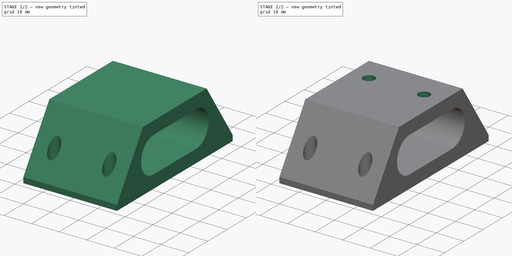
[diagram: build sequence overview — one tinted view per stage of 2, left to right]
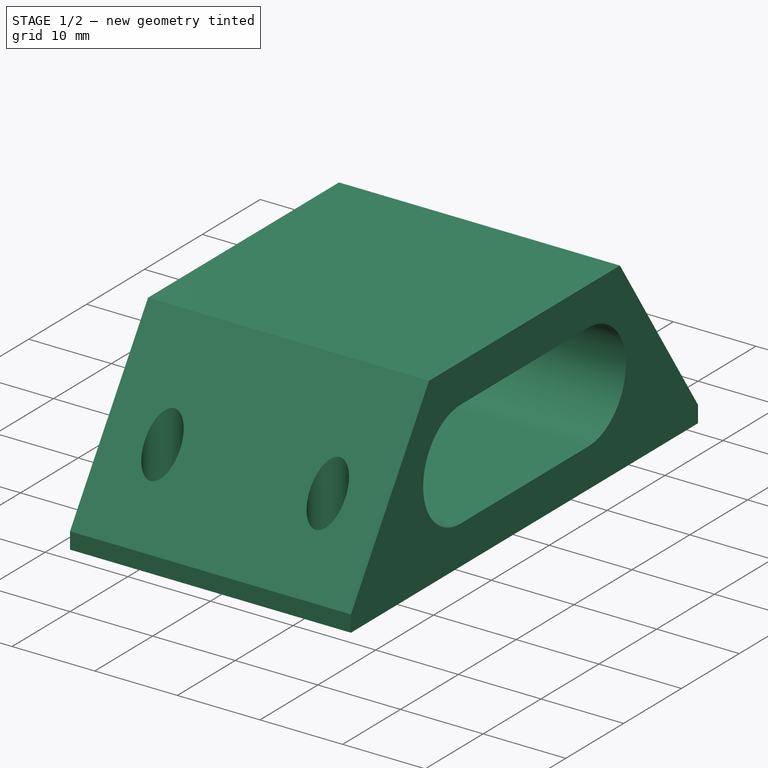
[diagram: stage 1 of 2 — iso view after this stage's code; geometry added in this stage tinted green]
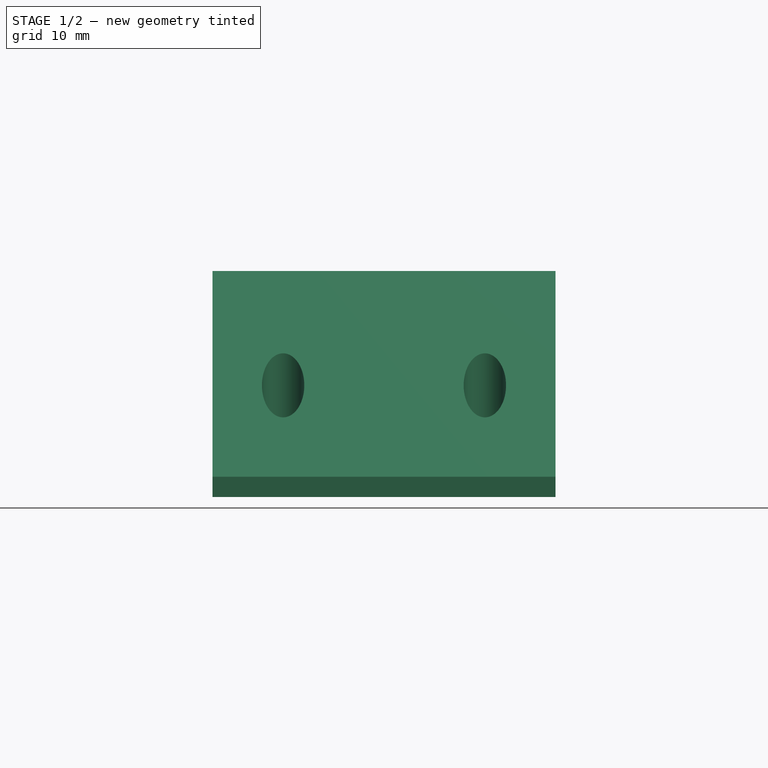
[diagram: stage 1 of 2 — front view after this stage's code; geometry added in this stage tinted green]
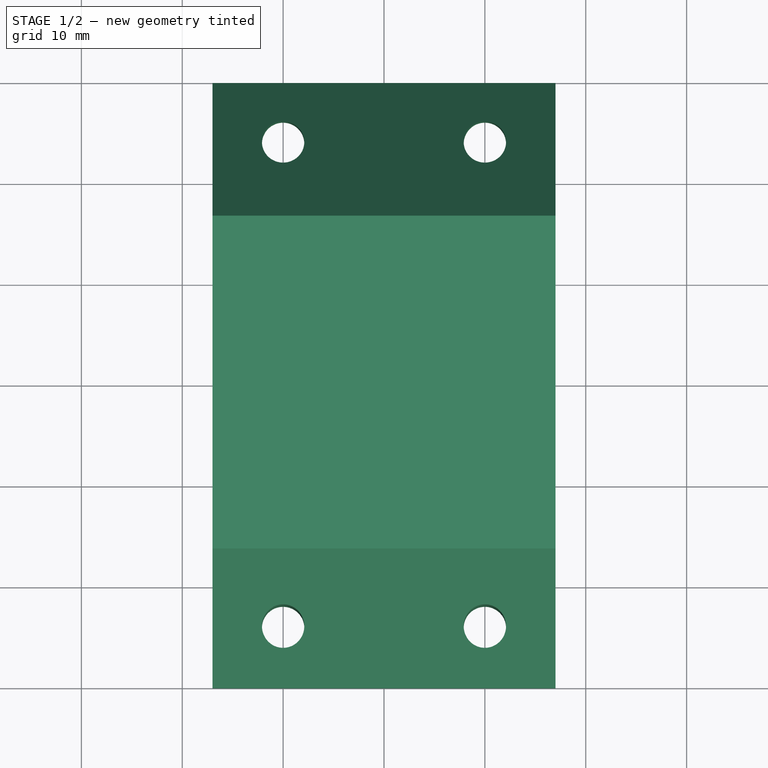
[diagram: stage 1 of 2 — top view after this stage's code; geometry added in this stage tinted green]
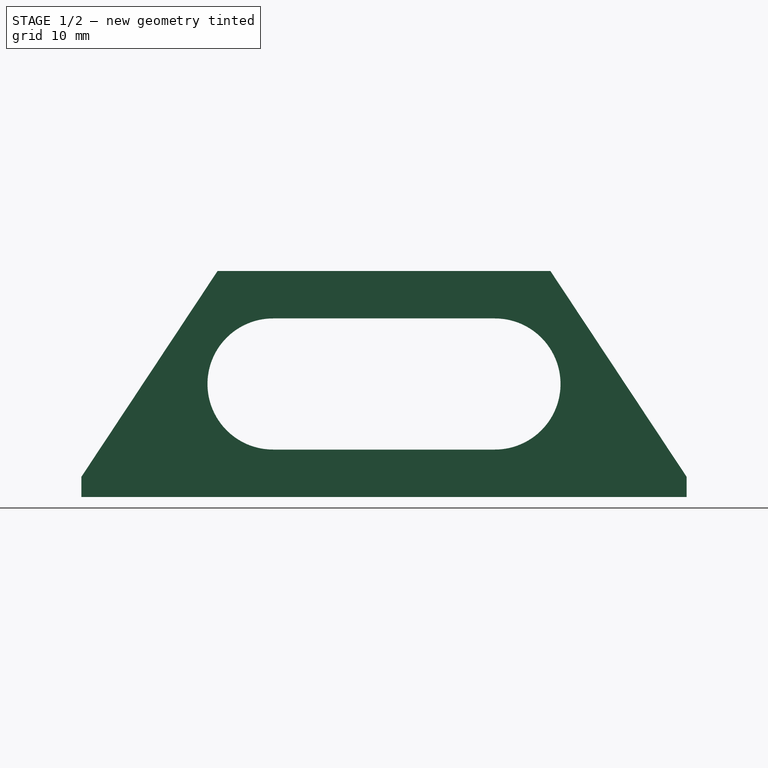
[diagram: stage 1 of 2 — right view after this stage's code; geometry added in this stage tinted green]
FCSTD DOCUMENT  (FreeCAD 0.19R23578 (Git))
Label: nut_block_standoff
License: All rights reserved
LicenseURL: http://en.wikipedia.org/wiki/All_rights_reserved
objects: Sketcher::SketchObject×3, PartDesign::Hole×2, PartDesign::CoordinateSystem×2, PartDesign::Pad×1, PartDesign::Body×1, App::Part×1
note: 12 computed .brp shape members not serialized (recipe doc carries the construction recipe); baked Part::Feature solids carry a one-line shape summary decoded from their .brp

FEATURE [Sketcher::SketchObject] Sketch026
  MapMode = 5
  Placement = pos=(0,0,0) rot=(0.57735,0.57735,0.57735;2.0944rad)
  Support = -> [YZ_Plane030]
  sketch-geometry (10):
    g0: LineSegment StartX=-30 StartY=0 StartZ=0 EndX=-30 EndY=2 EndZ=0
    g1: LineSegment StartX=-30 StartY=2 StartZ=0 EndX=-16.5 EndY=22.4 EndZ=0
    g2: LineSegment StartX=-16.5 StartY=22.4 StartZ=0 EndX=16.5 EndY=22.4 EndZ=0
    g3: LineSegment StartX=16.5 StartY=22.4 StartZ=0 EndX=30 EndY=2 EndZ=0
    g4: LineSegment StartX=30 StartY=2 StartZ=0 EndX=30 EndY=0 EndZ=0
    g5: LineSegment StartX=30 StartY=0 StartZ=0 EndX=-30 EndY=0 EndZ=0
    g6: ArcOfCircle CenterX=-11 CenterY=11.2 CenterZ=0 NormalX=0 NormalY=0 NormalZ=1 AngleXU=0 Radius=6.5 StartAngle=1.5708 EndAngle=4.71239
    g7: ArcOfCircle CenterX=11 CenterY=11.2 CenterZ=0 NormalX=0 NormalY=0 NormalZ=1 AngleXU=0 Radius=6.5 StartAngle=4.71239 EndAngle=7.85398
    g8: LineSegment StartX=-11 StartY=4.7 StartZ=0 EndX=11 EndY=4.7 EndZ=0
    g9: LineSegment StartX=-11 StartY=17.7 StartZ=0 EndX=11 EndY=17.7 EndZ=0
  constraints (25):
    c: Coincident(g0,g5)
    c: Coincident(g0,g1)
    c: Coincident(g1,g2)
    c: Coincident(g2,g3)
    c: Coincident(g3,g4)
    c: Coincident(g4,g5)
    c: Vertical(g0)
    c: Vertical(g4)
    c: PointOnObject(g-1,g5)
    c: DistanceX(g5,g5) = 60
    c: DistanceX(g2,g2) = 33
    c: DistanceY(g0,g0) = 2
    c: Equal(g0,g4)
    c: DistanceY(g4,g2) = 22.4
    c: Symmetric(g1,g2,g-2)
    c: Symmetric(g0,g4,g-2)
    c: Tangent(g6,g9) = 1.5708
    c: Tangent(g6,g8) = -1.5708
    c: Tangent(g8,g7) = -1.5708
    c: Tangent(g9,g7) = 1.5708
    c: Horizontal(g8)
    c: Symmetric(g6,g7,g-2)
    c: Distance(g6,g6) = 13
    c: DistanceY(g-1,g6) = 11.2
    c: DistanceX(g6,g7) = 22
FEATURE [PartDesign::Pad] Pad002
  AllowMultiFace = false
  Direction = (1,1,1)
  Length = 34
  Length2 = 100
  Midplane = true
  Placement = pos=(0,0,0) rot=(0.57735,0.57735,0.57735;2.0944rad)
  Profile = -> Sketch026
  Type = 0
FEATURE [Sketcher::SketchObject] Sketch027
  MapMode = 5
  Placement = pos=(0,0,0) rot=(0,1,0;3.14159rad)
  Support = -> [XY_Plane030]
  sketch-geometry (11):
    g0: Circle CenterX=-10 CenterY=24 CenterZ=0 NormalX=0 NormalY=0 NormalZ=1 AngleXU=0 Radius=2.5
    g1: Circle CenterX=-10 CenterY=-24 CenterZ=0 NormalX=0 NormalY=0 NormalZ=1 AngleXU=0 Radius=2.5
    g2: Circle CenterX=10 CenterY=-24 CenterZ=0 NormalX=0 NormalY=0 NormalZ=1 AngleXU=0 Radius=2.5
    g3: Circle CenterX=10 CenterY=24 CenterZ=0 NormalX=0 NormalY=0 NormalZ=1 AngleXU=0 Radius=2.5
    g4: LineSegment StartX=-10 StartY=24 StartZ=0 EndX=10 EndY=24 EndZ=0
    g5: LineSegment StartX=10 StartY=24 StartZ=0 EndX=10 EndY=-24 EndZ=0
    g6: LineSegment StartX=10 StartY=-24 StartZ=0 EndX=-10 EndY=-24 EndZ=0
    g7: LineSegment StartX=-10 StartY=-24 StartZ=0 EndX=-10 EndY=24 EndZ=0
    g8: LineSegment StartX=-10 StartY=24 StartZ=0 EndX=10 EndY=-24 EndZ=0
    g9: LineSegment StartX=-10 StartY=-24 StartZ=0 EndX=10 EndY=24 EndZ=0
    g10: GeomPoint X=0 Y=0 Z=0
  constraints (25):
    c: Coincident(g4,g5)
    c: Coincident(g5,g6)
    c: Coincident(g6,g7)
    c: Coincident(g7,g4)
    c: Horizontal(g4)
    c: Horizontal(g6)
    c: Vertical(g5)
    c: Vertical(g7)
    c: Coincident(g4,g0)
    c: Coincident(g5,g2)
    c: Coincident(g3,g4)
    c: Coincident(g1,g6)
    c: Diameter(g0) = 5
    c: Equal(g0,g3)
    c: Equal(g3,g1)
    c: Equal(g1,g2)
    c: Coincident(g8,g2)
    c: Coincident(g9,g1)
    c: Coincident(g9,g3)
    c: PointOnObject(g10,g8)
    c: PointOnObject(g10,g9)
    c: Coincident(g10,g-1)
    c: DistanceX(g6,g6) = 20
    c: Coincident(g8,g0)
    c: DistanceY(g5,g5) = 48
FEATURE [PartDesign::Hole] Hole002
  AllowMultiFace = false
  BaseFeature = -> Pad002
  Depth = 25
  DepthType = 1
  Diameter = 1.6
  DrillPoint = 0
  DrillPointAngle = 118
  HoleCutCountersinkAngle = 90
  HoleCutDepth = 0
  HoleCutDiameter = 5
  HoleCutType = 0
  ModelActualThread = false
  Placement = pos=(0,0,0) rot=(0.57735,0.57735,0.57735;2.0944rad)
  Profile = -> Sketch027
  Tapered = false
  TaperedAngle = 90
  ThreadAngle = 60
  ThreadClass = 0
  ThreadCutOffInner = 0.0433013
  ThreadCutOffOuter = 0.0866025
  ThreadDirection = 1
  ThreadFit = 0
  ThreadPitch = 0.4
  ThreadSize = 6
  ThreadType = 1
  Threaded = true
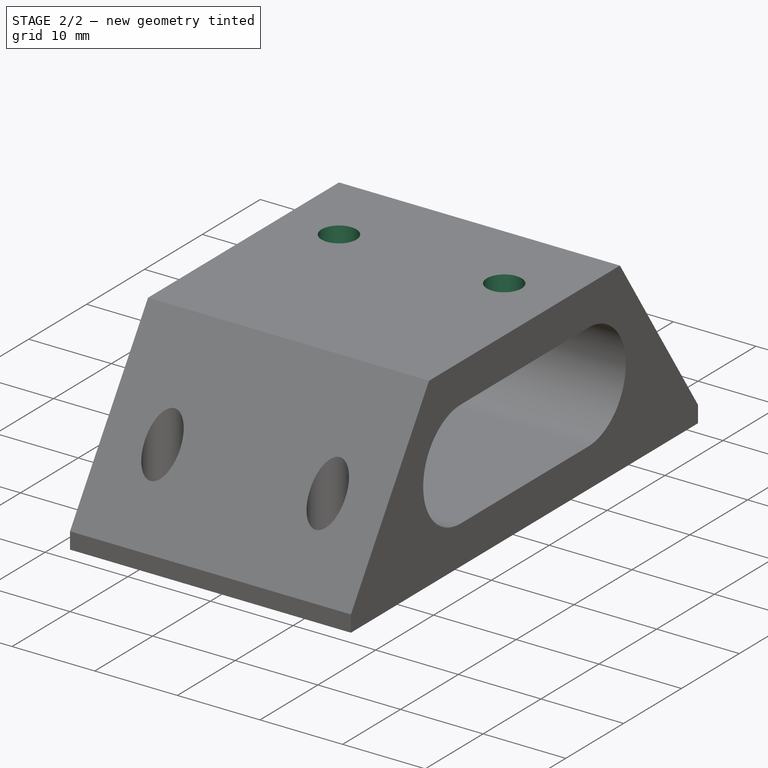
[diagram: stage 2 of 2 — iso view after this stage's code; geometry added in this stage tinted green]
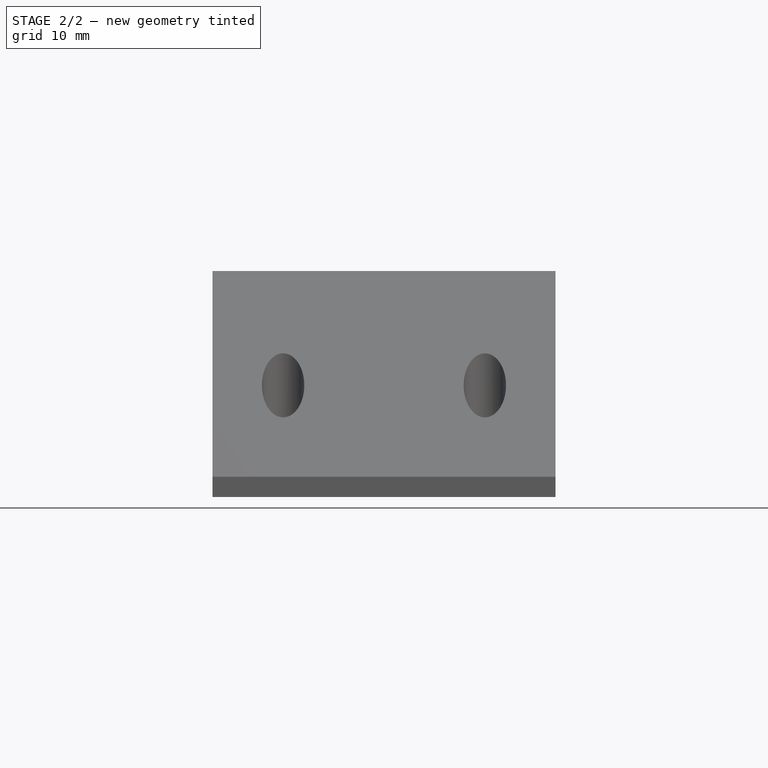
[diagram: stage 2 of 2 — front view after this stage's code; geometry added in this stage tinted green]
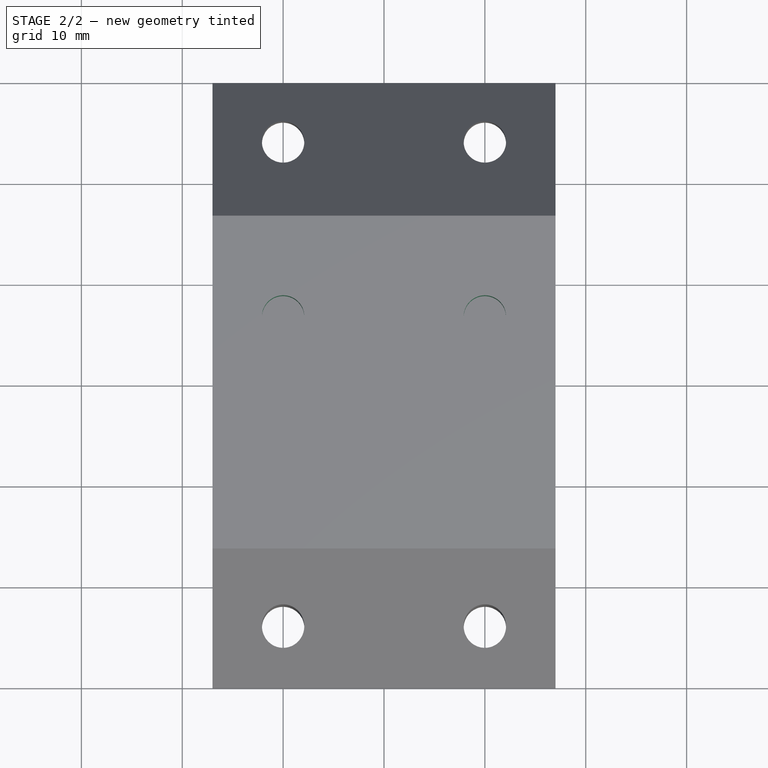
[diagram: stage 2 of 2 — top view after this stage's code; geometry added in this stage tinted green]
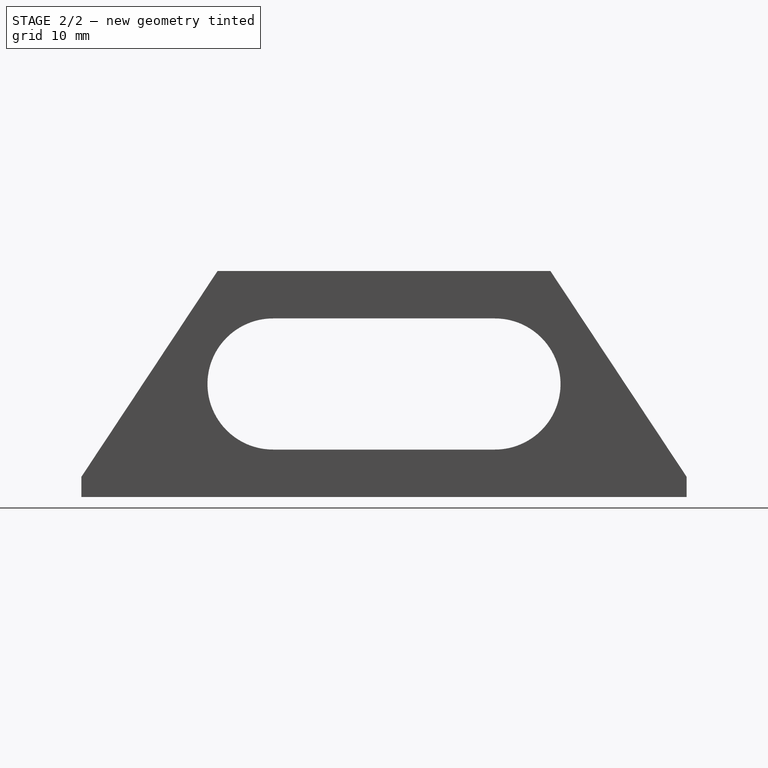
[diagram: stage 2 of 2 — right view after this stage's code; geometry added in this stage tinted green]
FEATURE [Sketcher::SketchObject] Sketch028
  AttachmentOffset = pos=(0,0,22.4) rot=(0,0,1;0rad)
  MapMode = 5
  Placement = pos=(0,0,22.4) rot=(0,0,1;0rad)
  Support = -> [XY_Plane030]
  sketch-geometry (2):
    g0: Circle CenterX=-10 CenterY=6.5 CenterZ=0 NormalX=0 NormalY=0 NormalZ=1 AngleXU=0 Radius=2.5
    g1: Circle CenterX=10 CenterY=6.5 CenterZ=0 NormalX=0 NormalY=0 NormalZ=1 AngleXU=0 Radius=2.5
  constraints (5):
    c: Symmetric(g0,g1,g-2)
    c: Diameter(g0) = 5
    c: Equal(g0,g1)
    c: DistanceX(g0,g-1) = 10
    c: DistanceY(g-1,g0) = 6.5
FEATURE [PartDesign::Hole] Hole001
  AllowMultiFace = false
  BaseFeature = -> Hole002
  Depth = 5
  DepthType = 0
  Diameter = 1.6
  DrillPoint = 0
  DrillPointAngle = 118
  HoleCutCountersinkAngle = 90
  HoleCutDepth = 0
  HoleCutDiameter = 5
  HoleCutType = 0
  ModelActualThread = false
  Placement = pos=(0,0,0) rot=(0.57735,0.57735,0.57735;2.0944rad)
  Profile = -> Sketch028
  Tapered = false
  TaperedAngle = 90
  ThreadAngle = 60
  ThreadClass = 0
  ThreadCutOffInner = 0.0433013
  ThreadCutOffOuter = 0.0866025
  ThreadDirection = 1
  ThreadFit = 0
  ThreadPitch = 0.4
  ThreadSize = 6
  ThreadType = 1
  Threaded = true
FEATURE [PartDesign::Body] Body011  label="Body"
  Group = -> [Sketch026,Pad002,Sketch027,Hole002,Sketch028,Hole001]
  Origin = -> Origin030
  Tip = -> Hole001
FEATURE [PartDesign::CoordinateSystem] LCS_1
  AttacherType = Attacher::AttachEngine3D
  MapMode = 5
  Placement = pos=(0,0,-1e-16) rot=(0.707107,0.707107,0;3.14159rad)
  Support = -> [Hole001]
FEATURE [PartDesign::CoordinateSystem] LCS_2
  AttacherType = Attacher::AttachEngine3D
  MapMode = 45
  Placement = pos=(-5.4e-15,6.5,22.4) rot=(0,0,1;1.5708rad)
  Support = -> [Hole001]
FEATURE [App::Part] Part018  label="nut_block_standoff"
  Group = -> [Body011,LCS_1,LCS_2]
  Origin = -> Origin025
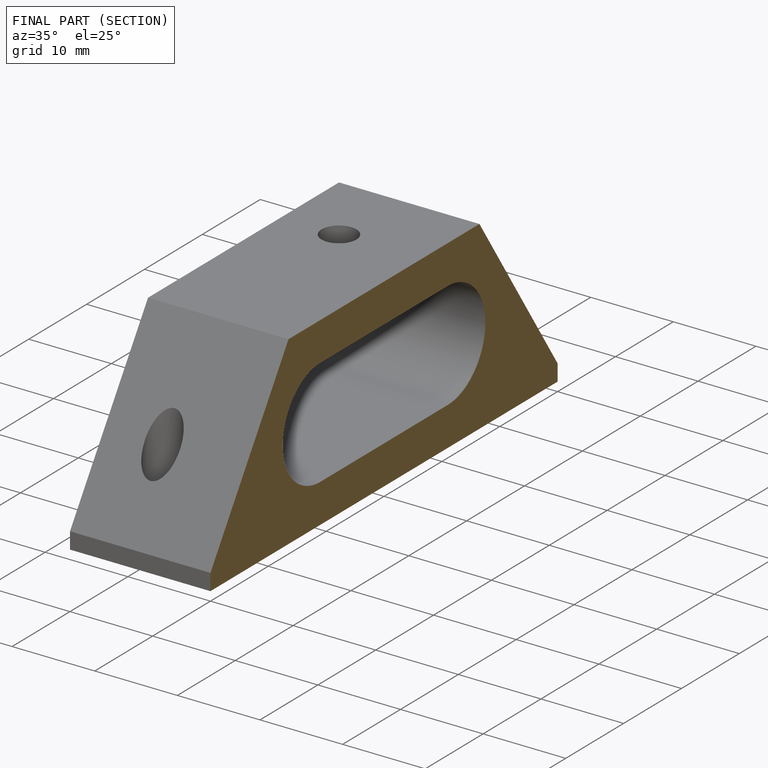
[diagram: finished part — half-section view (interior)]
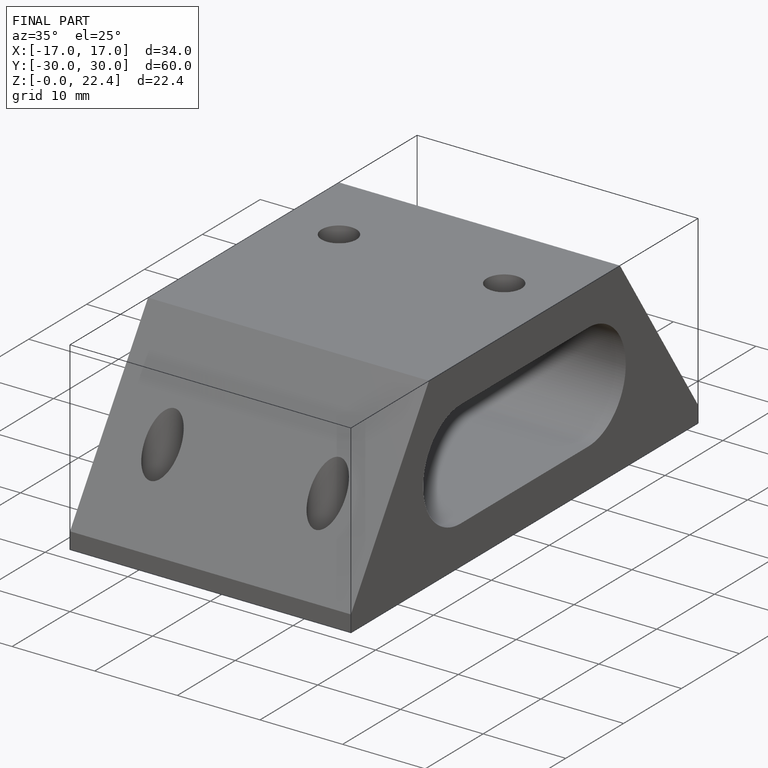
[diagram: finished part — iso view with bounding-box wireframe]
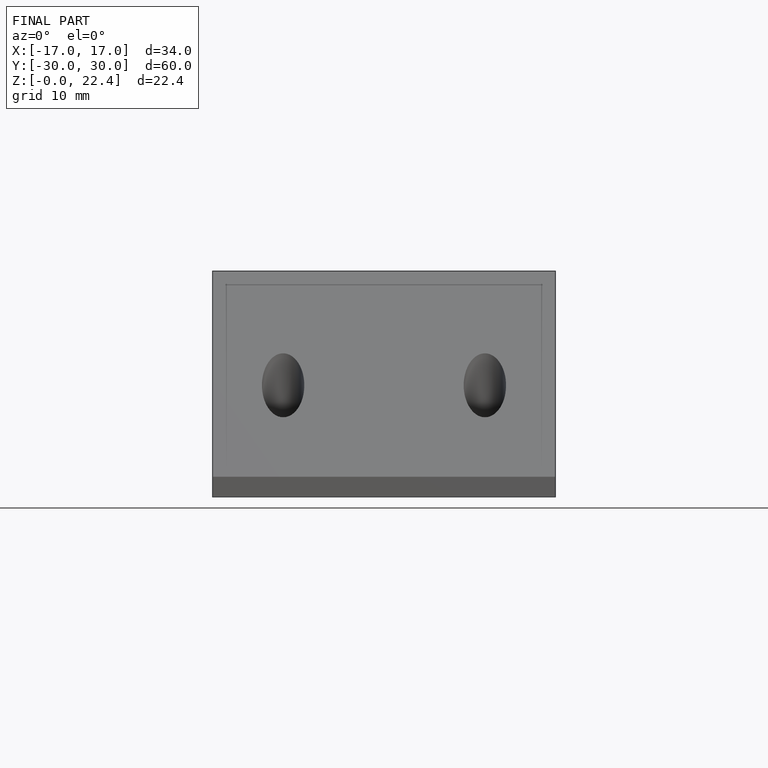
[diagram: finished part — front view with bounding-box wireframe]
